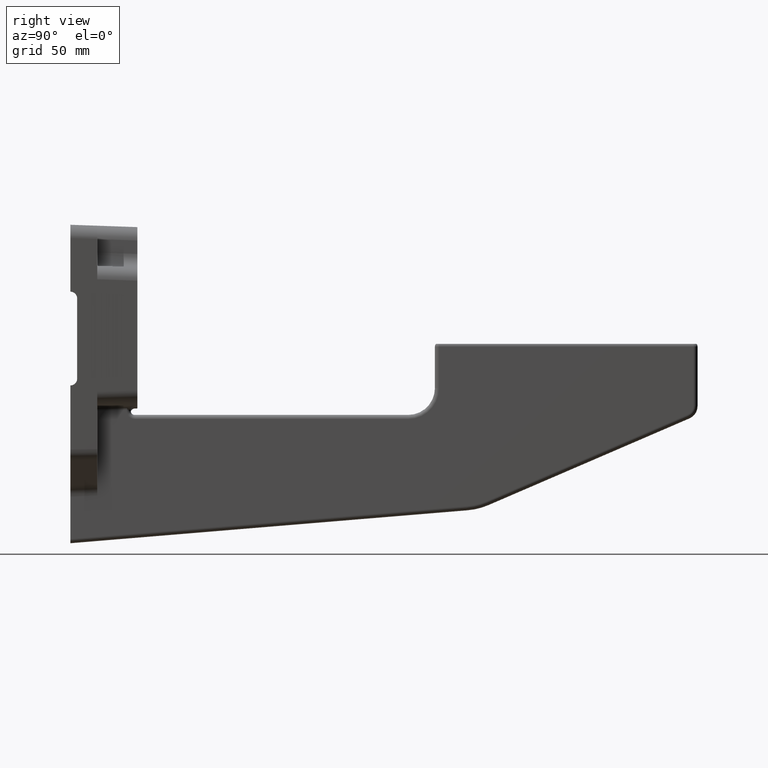
[diagram: clean part render]
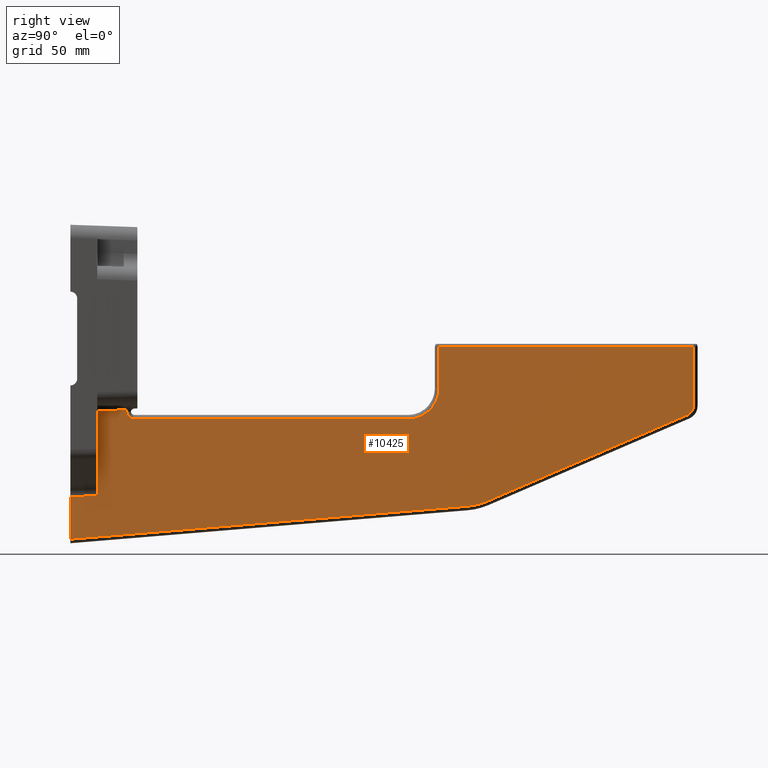
[diagram: same view with one face highlighted and labeled with its STEP entity id]
A machine part, right view. The second image highlights one B-rep face of the part: STEP entity #10425.
In plain terms, the highlighted planar face has unit normal (-1, 0, -0).
Its self-contained STEP definition (entity closure, byte-faithful):
#72 = DIRECTION ( 'NONE',  ( -1.000000000000000000, 0.0000000000000000000, -0.0000000000000000000 ) ) ;
#176 = CARTESIAN_POINT ( 'NONE',  ( 39.99999999999997900, 44.99999999999997900, -139.0000000000100000 ) ) ;
#238 = CARTESIAN_POINT ( 'NONE',  ( 39.99999999999997900, 277.9999999999999400, -122.0000000000001000 ) ) ;
#399 = DIRECTION ( 'NONE',  ( 0.0000000000000000000, 2.775557561562851900E-016, 1.000000000000000000 ) ) ;
#441 = VERTEX_POINT ( 'NONE', #9471 ) ;
#455 = EDGE_CURVE ( 'NONE', #11885, #9430, #9686, .T. ) ;
#519 = VERTEX_POINT ( 'NONE', #5341 ) ;
#536 = VERTEX_POINT ( 'NONE', #176 ) ;
#538 = ORIENTED_EDGE ( 'NONE', *, *, #7543, .T. ) ;
#647 = CARTESIAN_POINT ( 'NONE',  ( 39.99999999999997900, 313.8245421327282500, -206.5058954343522000 ) ) ;
#662 = CARTESIAN_POINT ( 'NONE',  ( 39.99999999999997900, 467.9999999999999400, -135.4218985499280200 ) ) ;
#784 = LINE ( 'NONE', #5040, #8780 ) ;
#1034 = CARTESIAN_POINT ( 'NONE',  ( 40.00000000000003600, 22.99999999999995700, -138.9481337352266100 ) ) ;
#1094 = CARTESIAN_POINT ( 'NONE',  ( 39.99999999999997900, 299.0990340419334100, -210.1863678546538100 ) ) ;
#1988 = CIRCLE ( 'NONE', #6249, 46.99999999999998600 ) ;
#2150 = LINE ( 'NONE', #10783, #7394 ) ;
#2177 = CARTESIAN_POINT ( 'NONE',  ( 39.99999999999997900, 22.99999999999994000, -202.1666416922227500 ) ) ;
#2196 = DIRECTION ( 'NONE',  ( 1.000000000000000000, 0.0000000000000000000, 0.0000000000000000000 ) ) ;
#2201 = CARTESIAN_POINT ( 'NONE',  ( 39.99999999999997900, 274.9999999999998300, -91.00000000000019900 ) ) ;
#2358 = LINE ( 'NONE', #238, #10378 ) ;
#2366 = VECTOR ( 'NONE', #6418, 1000.000000000000000 ) ;
#2371 = DIRECTION ( 'NONE',  ( -1.000000000000000000, -0.0000000000000000000, -0.0000000000000000000 ) ) ;
#2582 = CARTESIAN_POINT ( 'NONE',  ( 39.99999999999997900, 0.2207593604141820700, -203.1441959402892200 ) ) ;
#3124 = CIRCLE ( 'NONE', #11156, 22.99999999999999300 ) ;
#3137 = VERTEX_POINT ( 'NONE', #4558 ) ;
#3206 = CARTESIAN_POINT ( 'NONE',  ( 39.99999999999997900, 467.9999999999999400, -88.00000000000035500 ) ) ;
#3267 = EDGE_CURVE ( 'NONE', #10969, #9579, #1988, .T. ) ;
#3320 = EDGE_CURVE ( 'NONE', #7857, #4317, #3124, .T. ) ;
#3392 = EDGE_CURVE ( 'NONE', #3137, #12397, #2150, .T. ) ;
#3445 = CARTESIAN_POINT ( 'NONE',  ( 39.99999999999997900, 461.0000000000005700, -135.4218985499278200 ) ) ;
#3502 = VERTEX_POINT ( 'NONE', #4644 ) ;
#3583 = CARTESIAN_POINT ( 'NONE',  ( 39.99999999999997900, 44.99999999999998600, -238.0000000000000000 ) ) ;
#3706 = ORIENTED_EDGE ( 'NONE', *, *, #6604, .T. ) ;
#3725 = FACE_OUTER_BOUND ( 'NONE', #13458, .T. ) ;
#3728 = DIRECTION ( 'NONE',  ( 1.000000000000000000, 0.0000000000000000000, 0.0000000000000000000 ) ) ;
#3922 = CIRCLE ( 'NONE', #6990, 6.000000000000005300 ) ;
#4089 = VECTOR ( 'NONE', #10506, 1000.000000000000000 ) ;
#4317 = VERTEX_POINT ( 'NONE', #11952 ) ;
#4480 = DIRECTION ( 'NONE',  ( 0.0000000000000000000, 0.0000000000000000000, 1.000000000000000000 ) ) ;
#4558 = CARTESIAN_POINT ( 'NONE',  ( 39.99999999999997900, 2.999999999999947200, -234.7409218971556300 ) ) ;
#4644 = CARTESIAN_POINT ( 'NONE',  ( 39.99999999999997900, 44.99999999999997900, -138.1788224920865100 ) ) ;
#4696 = VECTOR ( 'NONE', #10848, 1000.000000000000100 ) ;
#4880 = VECTOR ( 'NONE', #6203, 1000.000000000000100 ) ;
#4886 = CARTESIAN_POINT ( 'NONE',  ( 39.99999999999997900, 463.7716628538044000, -141.8497975087505300 ) ) ;
#5040 = CARTESIAN_POINT ( 'NONE',  ( 39.99999999999997900, 47.99999999999998600, -144.9999999999999100 ) ) ;
#5057 = ORIENTED_EDGE ( 'NONE', *, *, #3392, .F. ) ;
#5123 = LINE ( 'NONE', #2201, #2366 ) ;
#5152 = VERTEX_POINT ( 'NONE', #12231 ) ;
#5341 = CARTESIAN_POINT ( 'NONE',  ( 39.99999999999997900, 50.99999999999998600, -144.9999999999999100 ) ) ;
#6039 = CARTESIAN_POINT ( 'NONE',  ( 39.99999999999997900, 277.9999999999999400, -122.0000000000001000 ) ) ;
#6122 = DIRECTION ( 'NONE',  ( 0.0000000000000000000, -1.000000000000000000, 1.072679250845561900E-015 ) ) ;
#6192 = EDGE_CURVE ( 'NONE', #3502, #8080, #10133, .T. ) ;
#6196 = CARTESIAN_POINT ( 'NONE',  ( 39.99999999999997900, 467.9999999999999400, -91.00000000000008500 ) ) ;
#6203 = DIRECTION ( 'NONE',  ( 0.0000000000000000000, -0.9993891554123456300, -0.03494733243322683400 ) ) ;
#6249 = AXIS2_PLACEMENT_3D ( 'NONE', #8479, #2196, #9512 ) ;
#6311 = CARTESIAN_POINT ( 'NONE',  ( 39.99999999999997900, 471.0000000000001700, -238.0000000000000000 ) ) ;
#6384 = EDGE_CURVE ( 'NONE', #12037, #8080, #9461, .T. ) ;
#6418 = DIRECTION ( 'NONE',  ( 0.0000000000000000000, -1.000000000000000000, -5.664403186863041500E-016 ) ) ;
#6563 = EDGE_CURVE ( 'NONE', #12037, #12397, #13355, .T. ) ;
#6604 = EDGE_CURVE ( 'NONE', #3137, #10969, #10279, .T. ) ;
#6634 = ORIENTED_EDGE ( 'NONE', *, *, #11358, .T. ) ;
#6702 = DIRECTION ( 'NONE',  ( -0.0000000000000000000, -0.0000000000000000000, 1.000000000000000000 ) ) ;
#6984 = EDGE_CURVE ( 'NONE', #441, #11885, #12211, .T. ) ;
#6990 = AXIS2_PLACEMENT_3D ( 'NONE', #9992, #3728, #11036 ) ;
#7306 = LINE ( 'NONE', #4886, #12844 ) ;
#7369 = DIRECTION ( 'NONE',  ( -0.0000000000000000000, 0.0000000000000000000, 1.000000000000000000 ) ) ;
#7371 = EDGE_CURVE ( 'NONE', #5152, #7857, #2358, .T. ) ;
#7394 = VECTOR ( 'NONE', #399, 1000.000000000000000 ) ;
#7540 = ORIENTED_EDGE ( 'NONE', *, *, #9980, .T. ) ;
#7543 = EDGE_CURVE ( 'NONE', #536, #3502, #9550, .T. ) ;
#7548 = DIRECTION ( 'NONE',  ( 0.0000000000000000000, 3.265361837132821100E-015, -1.000000000000000000 ) ) ;
#7556 = CARTESIAN_POINT ( 'NONE',  ( 40.00000000000003600, 22.99999999999993600, -214.3105170035964600 ) ) ;
#7753 = ORIENTED_EDGE ( 'NONE', *, *, #3267, .T. ) ;
#7857 = VERTEX_POINT ( 'NONE', #6039 ) ;
#8080 = VERTEX_POINT ( 'NONE', #1034 ) ;
#8109 = ORIENTED_EDGE ( 'NONE', *, *, #3320, .T. ) ;
#8374 = PLANE ( 'NONE',  #9481 ) ;
#8470 = ORIENTED_EDGE ( 'NONE', *, *, #8755, .F. ) ;
#8479 = CARTESIAN_POINT ( 'NONE',  ( 39.99999999999997900, 295.2148058286123800, -163.3471452822536500 ) ) ;
#8661 = CARTESIAN_POINT ( 'NONE',  ( 39.99999999999997900, 255.0000000000000000, -122.0000000000001100 ) ) ;
#8695 = ORIENTED_EDGE ( 'NONE', *, *, #6984, .T. ) ;
#8755 = EDGE_CURVE ( 'NONE', #536, #519, #3922, .T. ) ;
#8780 = VECTOR ( 'NONE', #6122, 1000.000000000000000 ) ;
#9082 = AXIS2_PLACEMENT_3D ( 'NONE', #3445, #10749, #4480 ) ;
#9241 = VECTOR ( 'NONE', #6702, 1000.000000000000000 ) ;
#9325 = CARTESIAN_POINT ( 'NONE',  ( 39.99999999999997900, 23.09949452124663300, -138.9446545418708800 ) ) ;
#9430 = VERTEX_POINT ( 'NONE', #6196 ) ;
#9461 = LINE ( 'NONE', #7556, #11920 ) ;
#9471 = CARTESIAN_POINT ( 'NONE',  ( 39.99999999999997900, 463.7716628538044000, -141.8497975087505600 ) ) ;
#9481 = AXIS2_PLACEMENT_3D ( 'NONE', #6311, #72, #7369 ) ;
#9512 = DIRECTION ( 'NONE',  ( 0.0000000000000000000, 0.0000000000000000000, 1.000000000000000000 ) ) ;
#9550 = LINE ( 'NONE', #3583, #9241 ) ;
#9579 = VERTEX_POINT ( 'NONE', #647 ) ;
#9603 = EDGE_CURVE ( 'NONE', #9579, #441, #7306, .T. ) ;
#9686 = LINE ( 'NONE', #3206, #4089 ) ;
#9697 = DIRECTION ( 'NONE',  ( 0.0000000000000000000, 0.0000000000000000000, 1.000000000000000000 ) ) ;
#9834 = ORIENTED_EDGE ( 'NONE', *, *, #6384, .F. ) ;
#9948 = VECTOR ( 'NONE', #13168, 999.9999999999998900 ) ;
#9980 = EDGE_CURVE ( 'NONE', #9430, #5152, #5123, .T. ) ;
#9992 = CARTESIAN_POINT ( 'NONE',  ( 39.99999999999997900, 50.99999999999998600, -139.0000000000100000 ) ) ;
#10133 = LINE ( 'NONE', #9325, #4880 ) ;
#10212 = ORIENTED_EDGE ( 'NONE', *, *, #455, .T. ) ;
#10279 = LINE ( 'NONE', #12140, #9948 ) ;
#10378 = VECTOR ( 'NONE', #7548, 1000.000000000000000 ) ;
#10425 = ADVANCED_FACE ( 'NONE', ( #3725 ), #8374, .F. ) ;
#10506 = DIRECTION ( 'NONE',  ( 0.0000000000000000000, 0.0000000000000000000, 1.000000000000000000 ) ) ;
#10710 = DIRECTION ( 'NONE',  ( 0.0000000000000000000, 2.775557561562851900E-016, 1.000000000000000000 ) ) ;
#10749 = DIRECTION ( 'NONE',  ( 1.000000000000000000, 0.0000000000000000000, 0.0000000000000000000 ) ) ;
#10783 = CARTESIAN_POINT ( 'NONE',  ( 39.99999999999997900, 2.999999999999947200, -237.9999999999998600 ) ) ;
#10848 = DIRECTION ( 'NONE',  ( 0.0000000000000000000, -0.9990804530648748100, -0.04287479800167332700 ) ) ;
#10969 = VERTEX_POINT ( 'NONE', #1094 ) ;
#11036 = DIRECTION ( 'NONE',  ( 0.0000000000000000000, 0.0000000000000000000, 1.000000000000000000 ) ) ;
#11156 = AXIS2_PLACEMENT_3D ( 'NONE', #8661, #2371, #9697 ) ;
#11358 = EDGE_CURVE ( 'NONE', #4317, #519, #784, .T. ) ;
#11557 = ORIENTED_EDGE ( 'NONE', *, *, #6192, .T. ) ;
#11632 = ORIENTED_EDGE ( 'NONE', *, *, #7371, .T. ) ;
#11885 = VERTEX_POINT ( 'NONE', #662 ) ;
#11920 = VECTOR ( 'NONE', #10710, 1000.000000000000000 ) ;
#11924 = CARTESIAN_POINT ( 'NONE',  ( 39.99999999999997900, 2.999999999999956500, -203.0249268857754100 ) ) ;
#11952 = CARTESIAN_POINT ( 'NONE',  ( 39.99999999999997900, 255.0000000000000000, -145.0000000000001100 ) ) ;
#12037 = VERTEX_POINT ( 'NONE', #2177 ) ;
#12140 = CARTESIAN_POINT ( 'NONE',  ( 39.99999999999997900, 299.0990340419332900, -210.1863678546538100 ) ) ;
#12211 = CIRCLE ( 'NONE', #9082, 6.999999999999340100 ) ;
#12218 = DIRECTION ( 'NONE',  ( 0.0000000000000000000, 0.9182712798318848300, 0.3959518362577854600 ) ) ;
#12231 = CARTESIAN_POINT ( 'NONE',  ( 39.99999999999997900, 277.9999999999998900, -91.00000000000019900 ) ) ;
#12397 = VERTEX_POINT ( 'NONE', #11924 ) ;
#12844 = VECTOR ( 'NONE', #12218, 1000.000000000000000 ) ;
#13041 = ORIENTED_EDGE ( 'NONE', *, *, #9603, .T. ) ;
#13168 = DIRECTION ( 'NONE',  ( 0.0000000000000000000, 0.9965792036680887200, 0.08264315347491474300 ) ) ;
#13355 = LINE ( 'NONE', #2582, #4696 ) ;
#13458 = EDGE_LOOP ( 'NONE', ( #5057, #3706, #7753, #13041, #8695, #10212, #7540, #11632, #8109, #6634, #8470, #538, #11557, #9834, #13485 ) ) ;
#13485 = ORIENTED_EDGE ( 'NONE', *, *, #6563, .T. ) ;